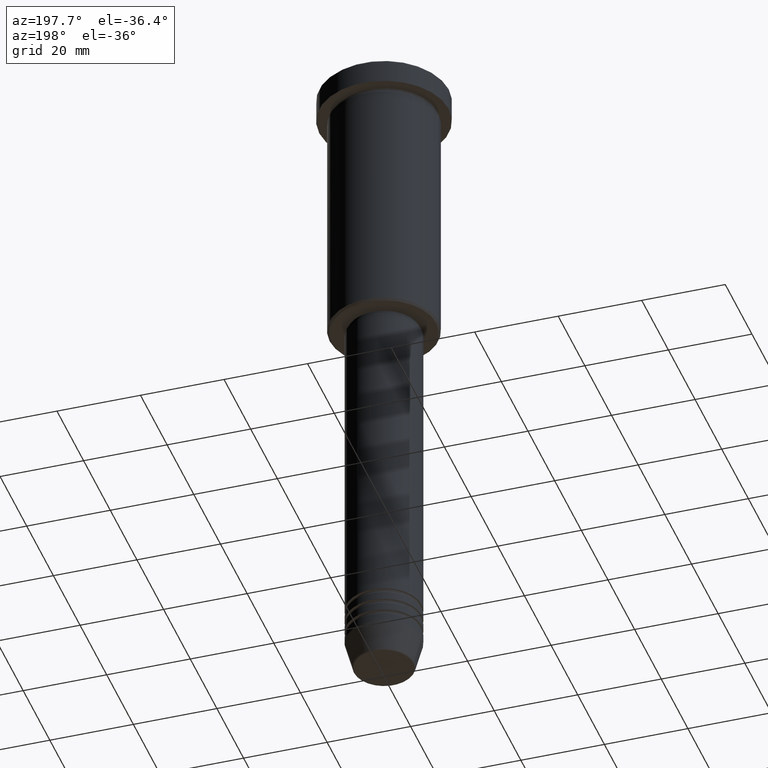
[diagram: clean part render]
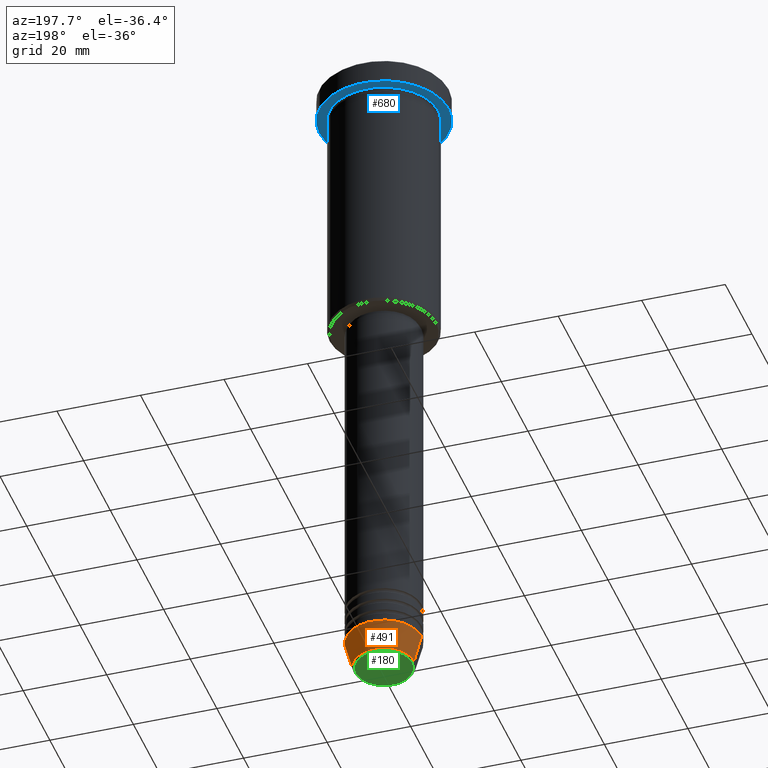
[diagram: same view with three faces highlighted in distinct colors, each labeled with its STEP entity id]
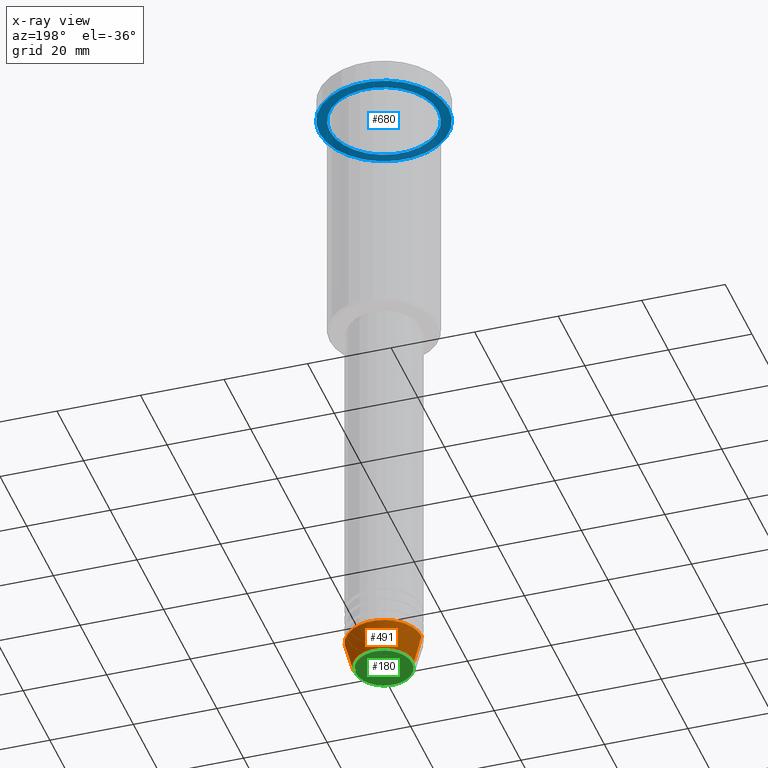
[diagram: x-ray of the same camera — body ghosted, the three highlighted faces saturated]
A machine part, auxiliary view with three faces highlighted in distinct colors.
The next image is the same camera in x-ray (body ghosted, the three faces saturated) — at least one of them is partly hidden behind the body in this view.
Their STEP definitions:

[orange] entity #491 — the highlighted conical surface has half-angle 15 deg.
#5 = EDGE_CURVE ( 'NONE', #614, #649, #332, .T. ) ;
#85 = CONICAL_SURFACE ( 'NONE', #442, 9.000000000000000000, 0.2617993877991500740 ) ;
#88 = CIRCLE ( 'NONE', #1097, 7.223655072137196598 ) ;
#94 = ORIENTED_EDGE ( 'NONE', *, *, #5, .F. ) ;
#113 = EDGE_CURVE ( 'NONE', #597, #614, #524, .T. ) ;
#240 = DIRECTION ( 'NONE',  ( 1.000000000000000000, 0.000000000000000000, 0.000000000000000000 ) ) ;
#253 = CARTESIAN_POINT ( 'NONE',  ( 0.000000000000000000, 0.000000000000000000, -160.6294095225512422 ) ) ;
#266 = DIRECTION ( 'NONE',  ( -0.000000000000000000, -0.000000000000000000, 1.000000000000000000 ) ) ;
#288 = EDGE_LOOP ( 'NONE', ( #1093, #832, #94, #755 ) ) ;
#332 = CIRCLE ( 'NONE', #651, 9.000000000000000000 ) ;
#368 = VECTOR ( 'NONE', #645, 1000.000000000000000 ) ;
#377 = CARTESIAN_POINT ( 'NONE',  ( -9.000000000000000000, 1.102182119232617714E-15, -154.0000000000000000 ) ) ;
#428 = VECTOR ( 'NONE', #439, 1000.000000000000000 ) ;
#433 = FACE_OUTER_BOUND ( 'NONE', #288, .T. ) ;
#439 = DIRECTION ( 'NONE',  ( 0.2588190451025213501, 0.000000000000000000, 0.9659258262890680902 ) ) ;
#442 = AXIS2_PLACEMENT_3D ( 'NONE', #974, #266, #611 ) ;
#452 = DIRECTION ( 'NONE',  ( 1.000000000000000000, 0.000000000000000000, 0.000000000000000000 ) ) ;
#468 = CARTESIAN_POINT ( 'NONE',  ( -9.000000000000000000, 1.102182119232617714E-15, -154.0000000000000000 ) ) ;
#491 = ADVANCED_FACE ( 'NONE', ( #433 ), #85, .T. ) ;
#524 = LINE ( 'NONE', #635, #428 ) ;
#562 = CARTESIAN_POINT ( 'NONE',  ( -7.223655072137197486, 9.934123627281769054E-16, -160.6294095225512422 ) ) ;
#585 = DIRECTION ( 'NONE',  ( -0.000000000000000000, -0.000000000000000000, 1.000000000000000000 ) ) ;
#597 = VERTEX_POINT ( 'NONE', #886 ) ;
#611 = DIRECTION ( 'NONE',  ( 1.000000000000000000, 0.000000000000000000, 0.000000000000000000 ) ) ;
#614 = VERTEX_POINT ( 'NONE', #737 ) ;
#627 = EDGE_CURVE ( 'NONE', #1082, #649, #744, .T. ) ;
#635 = CARTESIAN_POINT ( 'NONE',  ( 9.000000000000000000, 0.000000000000000000, -154.0000000000000000 ) ) ;
#645 = DIRECTION ( 'NONE',  ( -0.2588190451025213501, 3.169619151431772337E-17, 0.9659258262890680902 ) ) ;
#649 = VERTEX_POINT ( 'NONE', #377 ) ;
#651 = AXIS2_PLACEMENT_3D ( 'NONE', #1056, #585, #240 ) ;
#737 = CARTESIAN_POINT ( 'NONE',  ( 9.000000000000000000, 0.000000000000000000, -154.0000000000000000 ) ) ;
#744 = LINE ( 'NONE', #468, #368 ) ;
#755 = ORIENTED_EDGE ( 'NONE', *, *, #113, .F. ) ;
#832 = ORIENTED_EDGE ( 'NONE', *, *, #627, .T. ) ;
#886 = CARTESIAN_POINT ( 'NONE',  ( 7.223655072137196598, 0.000000000000000000, -160.6294095225512422 ) ) ;
#973 = DIRECTION ( 'NONE',  ( -0.000000000000000000, -0.000000000000000000, 1.000000000000000000 ) ) ;
#974 = CARTESIAN_POINT ( 'NONE',  ( 0.000000000000000000, 0.000000000000000000, -154.0000000000000000 ) ) ;
#992 = EDGE_CURVE ( 'NONE', #597, #1082, #88, .T. ) ;
#1056 = CARTESIAN_POINT ( 'NONE',  ( 0.000000000000000000, 0.000000000000000000, -154.0000000000000000 ) ) ;
#1082 = VERTEX_POINT ( 'NONE', #562 ) ;
#1093 = ORIENTED_EDGE ( 'NONE', *, *, #992, .T. ) ;
#1097 = AXIS2_PLACEMENT_3D ( 'NONE', #253, #973, #452 ) ;

[blue] entity #680 — the highlighted planar face has unit normal (0, 0, -1).
#51 = DIRECTION ( 'NONE',  ( -0.000000000000000000, -0.000000000000000000, 1.000000000000000000 ) ) ;
#78 = CARTESIAN_POINT ( 'NONE',  ( 15.50000000000000000, 0.000000000000000000, -5.999999999999995559 ) ) ;
#103 = AXIS2_PLACEMENT_3D ( 'NONE', #112, #472, #834 ) ;
#112 = CARTESIAN_POINT ( 'NONE',  ( 0.000000000000000000, 15.50000000000000000, -5.999999999999995559 ) ) ;
#121 = CIRCLE ( 'NONE', #275, 15.50000000000000000 ) ;
#124 = AXIS2_PLACEMENT_3D ( 'NONE', #359, #718, #988 ) ;
#129 = EDGE_CURVE ( 'NONE', #632, #430, #296, .T. ) ;
#130 = ORIENTED_EDGE ( 'NONE', *, *, #129, .T. ) ;
#141 = CIRCLE ( 'NONE', #800, 13.00000000000000000 ) ;
#207 = VERTEX_POINT ( 'NONE', #926 ) ;
#209 = FACE_OUTER_BOUND ( 'NONE', #561, .T. ) ;
#272 = DIRECTION ( 'NONE',  ( -0.000000000000000000, -0.000000000000000000, 1.000000000000000000 ) ) ;
#273 = AXIS2_PLACEMENT_3D ( 'NONE', #798, #276, #818 ) ;
#275 = AXIS2_PLACEMENT_3D ( 'NONE', #747, #51, #1162 ) ;
#276 = DIRECTION ( 'NONE',  ( -0.000000000000000000, -0.000000000000000000, 1.000000000000000000 ) ) ;
#296 = CIRCLE ( 'NONE', #273, 13.00000000000000000 ) ;
#304 = CARTESIAN_POINT ( 'NONE',  ( -13.00000000000000000, 0.000000000000000000, -5.999999999999994671 ) ) ;
#320 = CARTESIAN_POINT ( 'NONE',  ( 13.00000000000000000, 1.592040838891559095E-15, -5.999999999999994671 ) ) ;
#335 = EDGE_CURVE ( 'NONE', #207, #557, #121, .T. ) ;
#359 = CARTESIAN_POINT ( 'NONE',  ( 0.000000000000000000, 0.000000000000000000, -5.999999999999995559 ) ) ;
#430 = VERTEX_POINT ( 'NONE', #320 ) ;
#472 = DIRECTION ( 'NONE',  ( 0.000000000000000000, 0.000000000000000000, -1.000000000000000000 ) ) ;
#475 = EDGE_CURVE ( 'NONE', #430, #632, #141, .T. ) ;
#557 = VERTEX_POINT ( 'NONE', #78 ) ;
#561 = EDGE_LOOP ( 'NONE', ( #985, #1175 ) ) ;
#632 = VERTEX_POINT ( 'NONE', #304 ) ;
#680 = ADVANCED_FACE ( 'NONE', ( #925, #209 ), #1005, .T. ) ;
#718 = DIRECTION ( 'NONE',  ( -0.000000000000000000, -0.000000000000000000, 1.000000000000000000 ) ) ;
#747 = CARTESIAN_POINT ( 'NONE',  ( 0.000000000000000000, 0.000000000000000000, -5.999999999999995559 ) ) ;
#798 = CARTESIAN_POINT ( 'NONE',  ( 0.000000000000000000, 0.000000000000000000, -5.999999999999995559 ) ) ;
#800 = AXIS2_PLACEMENT_3D ( 'NONE', #1083, #272, #989 ) ;
#818 = DIRECTION ( 'NONE',  ( -1.000000000000000000, 0.000000000000000000, 0.000000000000000000 ) ) ;
#823 = CIRCLE ( 'NONE', #124, 15.50000000000000000 ) ;
#834 = DIRECTION ( 'NONE',  ( -1.000000000000000000, 0.000000000000000000, -0.000000000000000000 ) ) ;
#925 = FACE_BOUND ( 'NONE', #975, .T. ) ;
#926 = CARTESIAN_POINT ( 'NONE',  ( -15.50000000000000000, 1.898202538678397557E-15, -5.999999999999995559 ) ) ;
#975 = EDGE_LOOP ( 'NONE', ( #130, #1113 ) ) ;
#985 = ORIENTED_EDGE ( 'NONE', *, *, #1058, .F. ) ;
#988 = DIRECTION ( 'NONE',  ( 1.000000000000000000, 0.000000000000000000, 0.000000000000000000 ) ) ;
#989 = DIRECTION ( 'NONE',  ( -1.000000000000000000, 0.000000000000000000, 0.000000000000000000 ) ) ;
#1005 = PLANE ( 'NONE',  #103 ) ;
#1058 = EDGE_CURVE ( 'NONE', #557, #207, #823, .T. ) ;
#1083 = CARTESIAN_POINT ( 'NONE',  ( 0.000000000000000000, 0.000000000000000000, -5.999999999999995559 ) ) ;
#1113 = ORIENTED_EDGE ( 'NONE', *, *, #475, .T. ) ;
#1162 = DIRECTION ( 'NONE',  ( 1.000000000000000000, 0.000000000000000000, 0.000000000000000000 ) ) ;
#1175 = ORIENTED_EDGE ( 'NONE', *, *, #335, .F. ) ;

[green] entity #180 — the highlighted planar face has unit normal (0, -0, 1).
#10 = CIRCLE ( 'NONE', #857, 6.740692158992664496 ) ;
#38 = CARTESIAN_POINT ( 'NONE',  ( 0.000000000000000000, 0.000000000000000000, -160.9999999999999716 ) ) ;
#166 = VERTEX_POINT ( 'NONE', #447 ) ;
#180 = ADVANCED_FACE ( 'NONE', ( #721 ), #343, .F. ) ;
#225 = DIRECTION ( 'NONE',  ( 1.000000000000000000, 0.000000000000000000, 0.000000000000000000 ) ) ;
#241 = EDGE_LOOP ( 'NONE', ( #908, #397 ) ) ;
#287 = EDGE_CURVE ( 'NONE', #166, #736, #311, .T. ) ;
#311 = CIRCLE ( 'NONE', #895, 6.740692158992664496 ) ;
#324 = CARTESIAN_POINT ( 'NONE',  ( 0.000000000000000000, 0.000000000000000000, -160.9999999999999716 ) ) ;
#343 = PLANE ( 'NONE',  #574 ) ;
#397 = ORIENTED_EDGE ( 'NONE', *, *, #409, .T. ) ;
#409 = EDGE_CURVE ( 'NONE', #736, #166, #10, .T. ) ;
#447 = CARTESIAN_POINT ( 'NONE',  ( 6.740692158992664496, 0.000000000000000000, -160.9999999999999716 ) ) ;
#574 = AXIS2_PLACEMENT_3D ( 'NONE', #702, #1071, #901 ) ;
#702 = CARTESIAN_POINT ( 'NONE',  ( 0.000000000000000000, 0.000000000000000000, -160.9999999999999716 ) ) ;
#721 = FACE_OUTER_BOUND ( 'NONE', #241, .T. ) ;
#736 = VERTEX_POINT ( 'NONE', #911 ) ;
#753 = DIRECTION ( 'NONE',  ( 1.000000000000000000, 0.000000000000000000, 0.000000000000000000 ) ) ;
#769 = DIRECTION ( 'NONE',  ( 0.000000000000000000, 0.000000000000000000, -1.000000000000000000 ) ) ;
#857 = AXIS2_PLACEMENT_3D ( 'NONE', #324, #769, #225 ) ;
#895 = AXIS2_PLACEMENT_3D ( 'NONE', #38, #1106, #753 ) ;
#901 = DIRECTION ( 'NONE',  ( 1.000000000000000000, 0.000000000000000000, 0.000000000000000000 ) ) ;
#908 = ORIENTED_EDGE ( 'NONE', *, *, #287, .T. ) ;
#911 = CARTESIAN_POINT ( 'NONE',  ( -6.740692158992664496, 8.550696569392693570E-16, -160.9999999999999716 ) ) ;
#1071 = DIRECTION ( 'NONE',  ( 0.000000000000000000, -0.000000000000000000, 1.000000000000000000 ) ) ;
#1106 = DIRECTION ( 'NONE',  ( 0.000000000000000000, 0.000000000000000000, -1.000000000000000000 ) ) ;